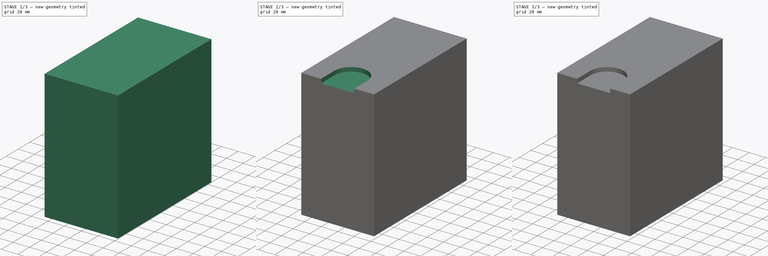
[diagram: build sequence overview — one tinted view per stage of 3, left to right]
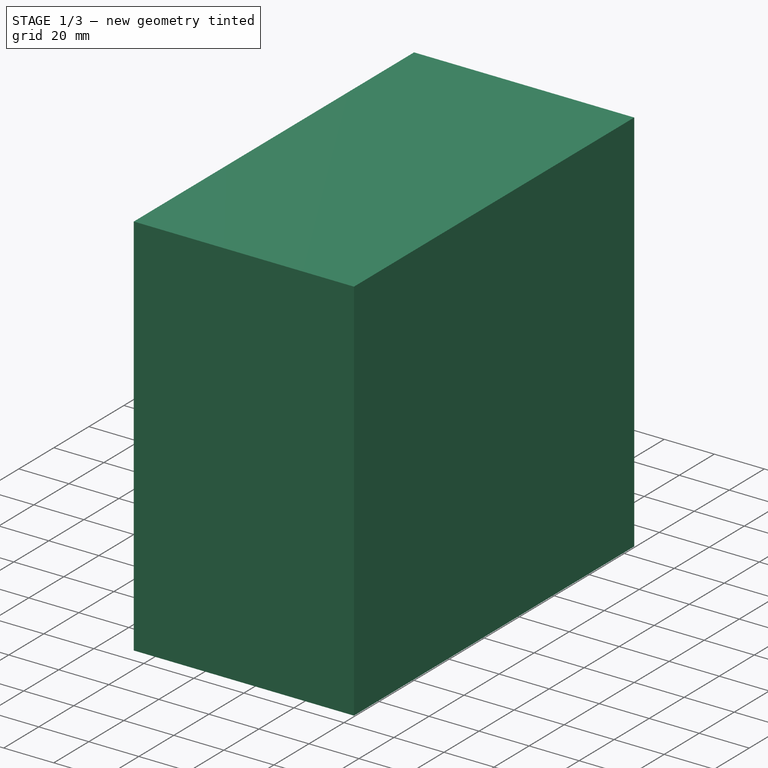
[diagram: stage 1 of 3 — iso view after this stage's code; geometry added in this stage tinted green]
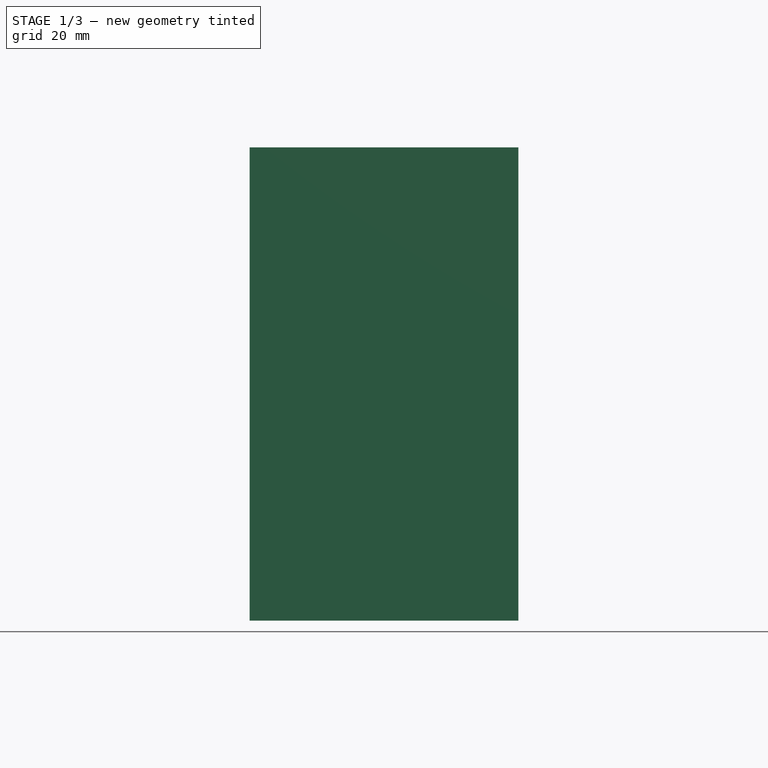
[diagram: stage 1 of 3 — front view after this stage's code; geometry added in this stage tinted green]
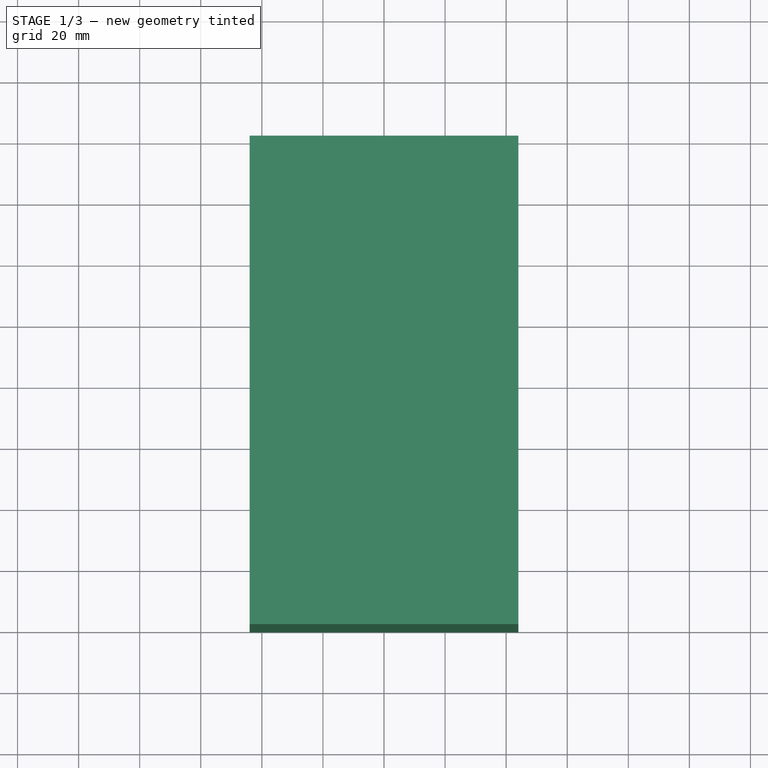
[diagram: stage 1 of 3 — top view after this stage's code; geometry added in this stage tinted green]
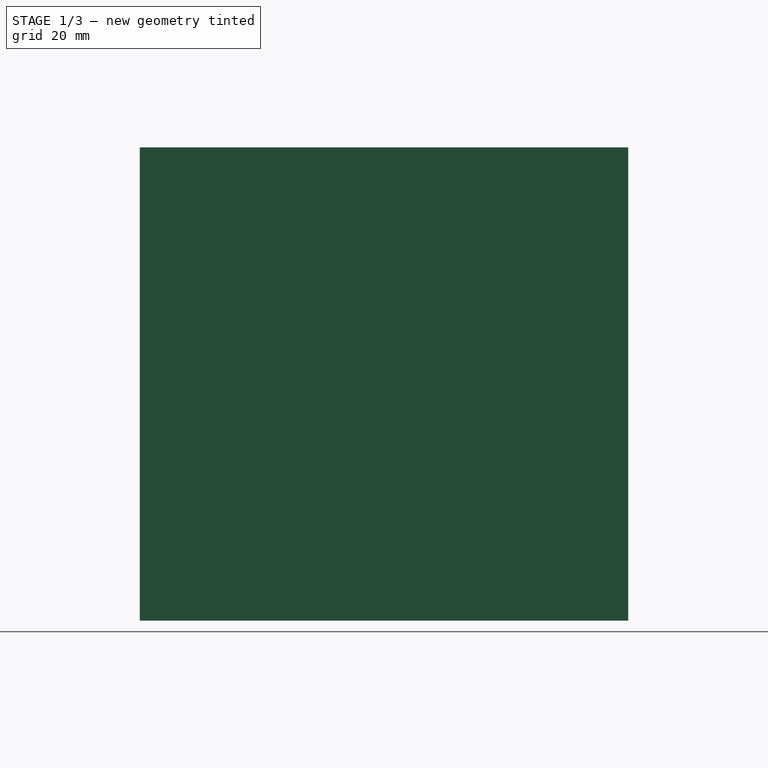
[diagram: stage 1 of 3 — right view after this stage's code; geometry added in this stage tinted green]
FCSTD DOCUMENT  (FreeCAD 1.1R20251111 (Git shallow))
Label: ATX_power_supply
License: All rights reserved
LicenseURL: https://en.wikipedia.org/wiki/All_rights_reserved
objects: Sketcher::SketchObject×5, PartDesign::Pocket×3, PartDesign::Pad×2, App::Point×1, PartDesign::Chamfer×1, PartDesign::Body×1
note: 29 computed .brp shape members not serialized (recipe doc carries the construction recipe); baked Part::Feature solids carry a one-line shape summary decoded from their .brp

FEATURE [App::Point] Origin001
  Role = Origin
FEATURE [Sketcher::SketchObject] Sketch
  ArcFitTolerance = 1e-06
  AttachmentSupport = -> [Origin]
  ExternalTypes = [0]
  FullyConstrained = true
  MakeInternals = false
  MapMode = 5
  sketch-geometry (5):
    g0: LineSegment StartX=-44 StartY=-80 StartZ=0 EndX=44 EndY=-80 EndZ=0
    g1: LineSegment StartX=44 StartY=-80 StartZ=0 EndX=44 EndY=80 EndZ=0
    g2: LineSegment StartX=44 StartY=80 StartZ=0 EndX=-44 EndY=80 EndZ=0
    g3: LineSegment StartX=-44 StartY=80 StartZ=0 EndX=-44 EndY=-80 EndZ=0
    g4: GeomPoint [constr] X=0 Y=0 Z=0
  constraints (12):
    c: Coincident(g0,g1)
    c: Coincident(g1,g2)
    c: Coincident(g2,g3)
    c: Coincident(g3,g0)
    c: Horizontal(g0)
    c: Horizontal(g2)
    c: Vertical(g1)
    c: Vertical(g3)
    c: Symmetric(g2,g0,g4)
    c: Distance(g1,g3) = 88
    c: Distance(g0,g2) = 160
    c: Coincident(g4,g-1)
FEATURE [PartDesign::Pad] Pad
  Direction = (0,0,1)
  Length = 155
  Length2 = 10
  Profile = -> Sketch
  ReferenceAxis = -> Sketch [N_Axis]
  Refine = true
  SideType = 0
  Suppressed = false
  Type = 0
  Type2 = 0
FEATURE [Sketcher::SketchObject] Sketch001
  ArcFitTolerance = 1e-06
  AttachmentSupport = -> [Pad]
  ExternalGeometry = -> [Pad]
  ExternalTypes = [0,0]
  FullyConstrained = true
  MakeInternals = false
  MapMode = 5
  Placement = pos=(-44,0,0) rot=(0.57735,-0.57735,-0.57735;2.0944rad)
  sketch-geometry (4):
    g0: Circle CenterX=0 CenterY=77.5 CenterZ=0 NormalX=0 NormalY=0 NormalZ=1 AngleXU=0 Radius=66
    g1: GeomPoint [constr] X=0 Y=155 Z=0
    g2: LineSegment [constr] StartX=0 StartY=155 StartZ=0 EndX=0 EndY=0 EndZ=0
    g3: GeomPoint [constr] X=0 Y=77.5 Z=0
  constraints (7):
    c: PointOnObject(g0,g-2)
    c: Diameter(g0) = 132
    c: PointOnObject(g1,g-3)
    c: Coincident(g2,g1)
    c: Coincident(g2,g-1)
    c: Symmetric(g2,g2,g3)
    c: Coincident(g0,g3)
FEATURE [PartDesign::Pocket] Pocket
  BaseFeature = -> Pad
  Direction = (1,0,0)
  Length = 5
  Length2 = 5
  Profile = -> Sketch001
  ReferenceAxis = -> Sketch001 [N_Axis]
  Refine = true
  SideType = 0
  Suppressed = false
  Type = 0
  Type2 = 0
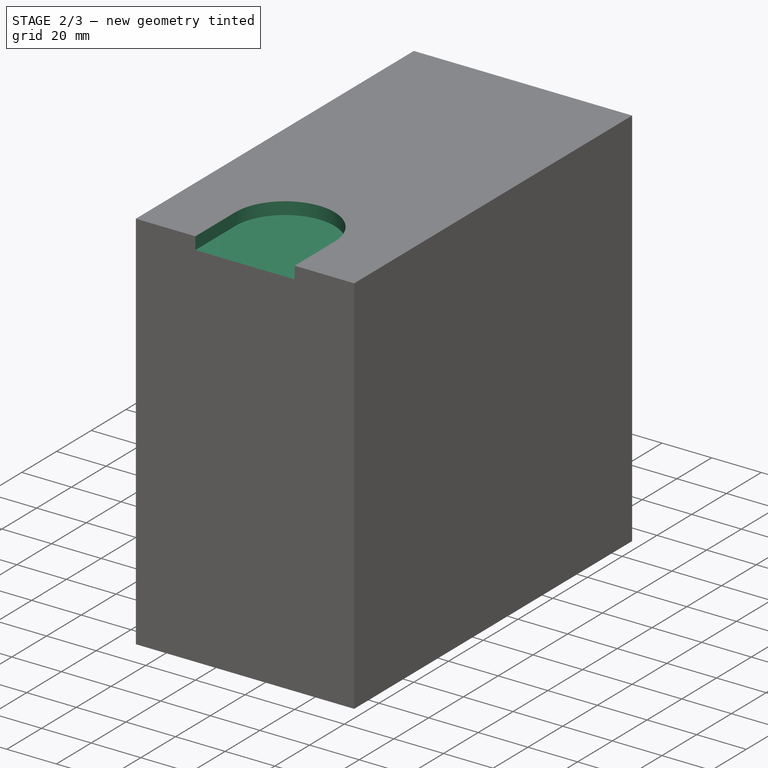
[diagram: stage 2 of 3 — iso view after this stage's code; geometry added in this stage tinted green]
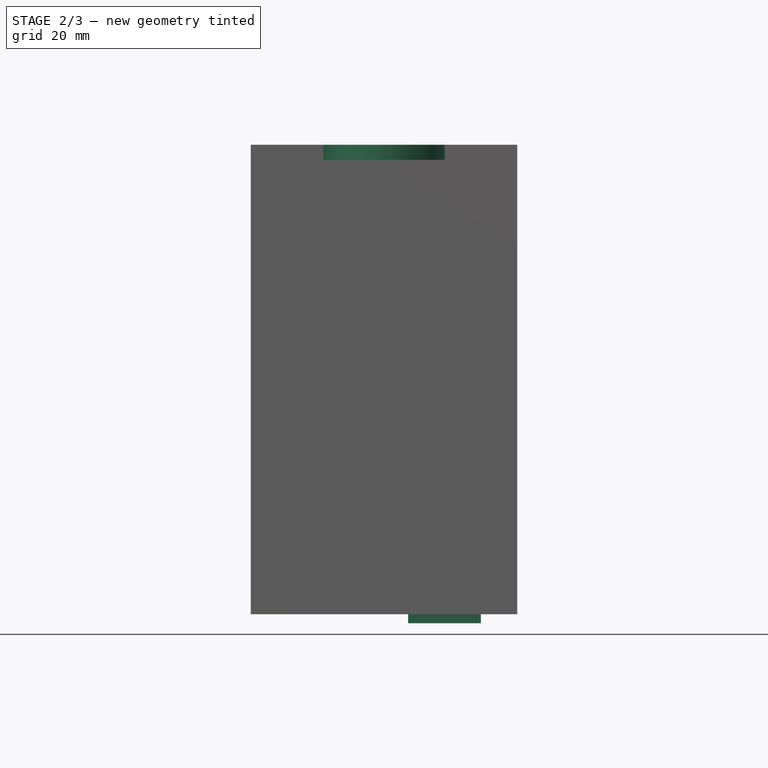
[diagram: stage 2 of 3 — front view after this stage's code; geometry added in this stage tinted green]
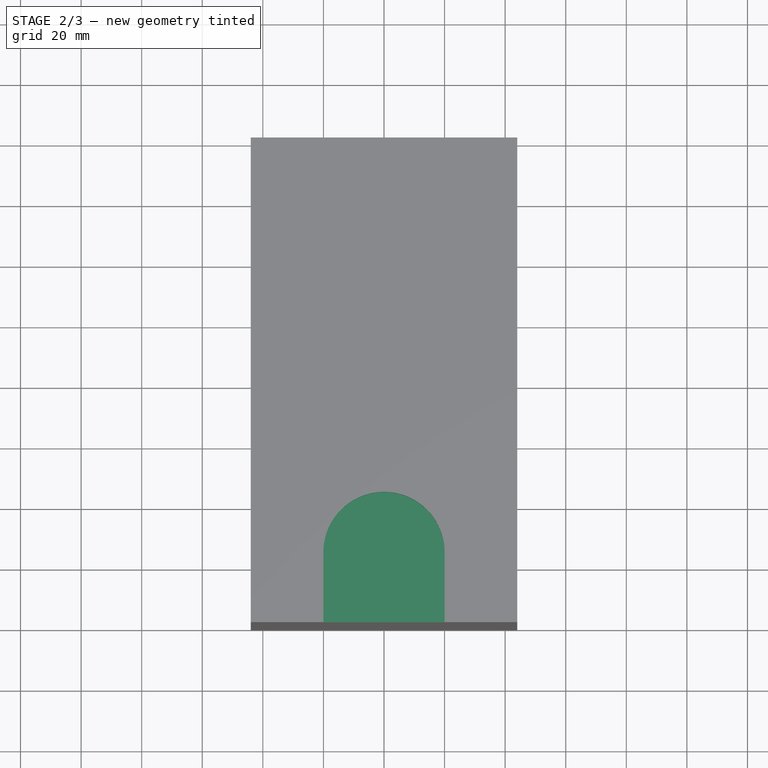
[diagram: stage 2 of 3 — top view after this stage's code; geometry added in this stage tinted green]
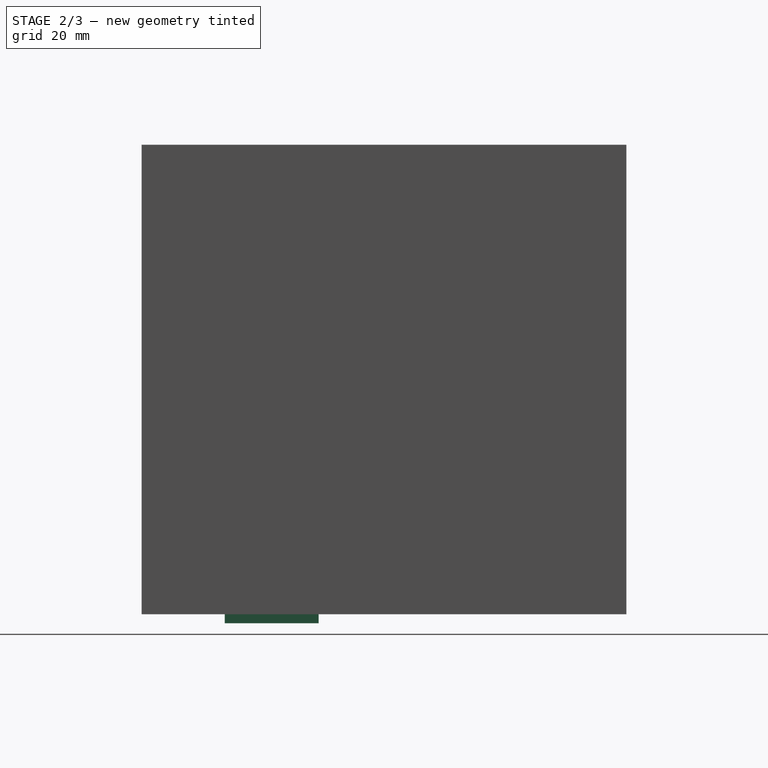
[diagram: stage 2 of 3 — right view after this stage's code; geometry added in this stage tinted green]
FEATURE [Sketcher::SketchObject] Sketch002
  ArcFitTolerance = 1e-06
  AttachmentSupport = -> [Pocket]
  ExternalGeometry = -> [Pocket]
  ExternalTypes = [0]
  FullyConstrained = false
  MakeInternals = false
  MapMode = 5
  Placement = pos=(0,0,155) rot=(0,0,1;0rad)
  sketch-geometry (4):
    g0: ArcOfCircle CenterX=0 CenterY=-56.9953 CenterZ=0 NormalX=0 NormalY=0 NormalZ=1 AngleXU=0 Radius=20 StartAngle=0 EndAngle=3.14159
    g1: LineSegment StartX=20 StartY=-56.9953 StartZ=0 EndX=20 EndY=-80 EndZ=0
    g2: LineSegment StartX=-20 StartY=-56.9953 StartZ=0 EndX=-20 EndY=-80 EndZ=0
    g3: LineSegment StartX=-20 StartY=-80 StartZ=0 EndX=20 EndY=-80 EndZ=0
  constraints (10):
    c: Radius(g0) = 20
    c: Angle(g0) = 3.14159
    c: PointOnObject(g0,g-2)
    c: PointOnObject(g1,g-3)
    c: Vertical(g1)
    c: PointOnObject(g2,g-3)
    c: Tangent(g2,g0) = -1.5708
    c: Tangent(g1,g0) = 1.5708
    c: Coincident(g3,g2)
    c: Coincident(g3,g1)
FEATURE [PartDesign::Pocket] Pocket001
  BaseFeature = -> Pocket
  Direction = (0,0,-1)
  Length = 5
  Length2 = 5
  Profile = -> Sketch002
  ReferenceAxis = -> Sketch002 [N_Axis]
  Refine = true
  SideType = 0
  Suppressed = false
  Type = 0
  Type2 = 0
FEATURE [Sketcher::SketchObject] Sketch003
  ArcFitTolerance = 1e-06
  AttachmentSupport = -> [Pocket001]
  ExternalTypes = [0]
  FullyConstrained = false
  MakeInternals = false
  MapMode = 5
  Placement = pos=(0,0,0) rot=(1,0,0;3.14159rad)
  sketch-geometry (5):
    g0: LineSegment StartX=7.97808 StartY=21.5819 StartZ=0 EndX=31.9781 EndY=21.5819 EndZ=0
    g1: LineSegment StartX=31.9781 StartY=21.5819 StartZ=0 EndX=31.9781 EndY=52.5819 EndZ=0
    g2: LineSegment StartX=31.9781 StartY=52.5819 StartZ=0 EndX=7.97808 EndY=52.5819 EndZ=0
    g3: LineSegment StartX=7.97808 StartY=52.5819 StartZ=0 EndX=7.97808 EndY=21.5819 EndZ=0
    g4: GeomPoint [constr] X=19.9781 Y=37.0819 Z=0
  constraints (11):
    c: Coincident(g0,g1)
    c: Coincident(g1,g2)
    c: Coincident(g2,g3)
    c: Coincident(g3,g0)
    c: Horizontal(g0)
    c: Horizontal(g2)
    c: Vertical(g1)
    c: Vertical(g3)
    c: Symmetric(g2,g0,g4)
    c: Distance(g1,g3) = 24
    c: Distance(g0,g2) = 31
FEATURE [PartDesign::Pad] Pad001
  BaseFeature = -> Pocket001
  Direction = (0,0,-1)
  Length = 3
  Length2 = 10
  Profile = -> Sketch003
  ReferenceAxis = -> Sketch003 [N_Axis]
  Refine = true
  SideType = 0
  Suppressed = false
  Type = 0
  Type2 = 0
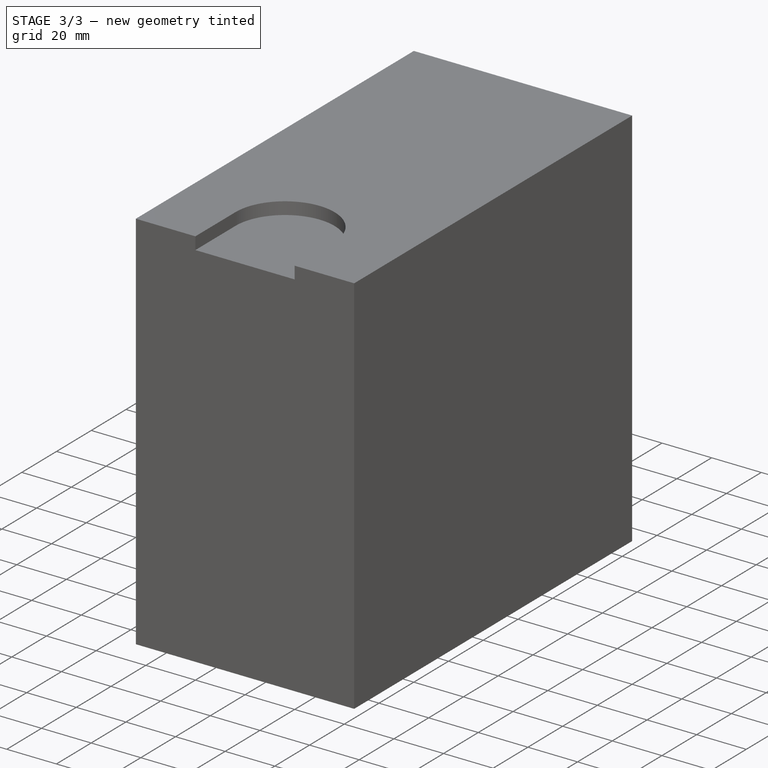
[diagram: stage 3 of 3 — iso view after this stage's code; geometry added in this stage tinted green]
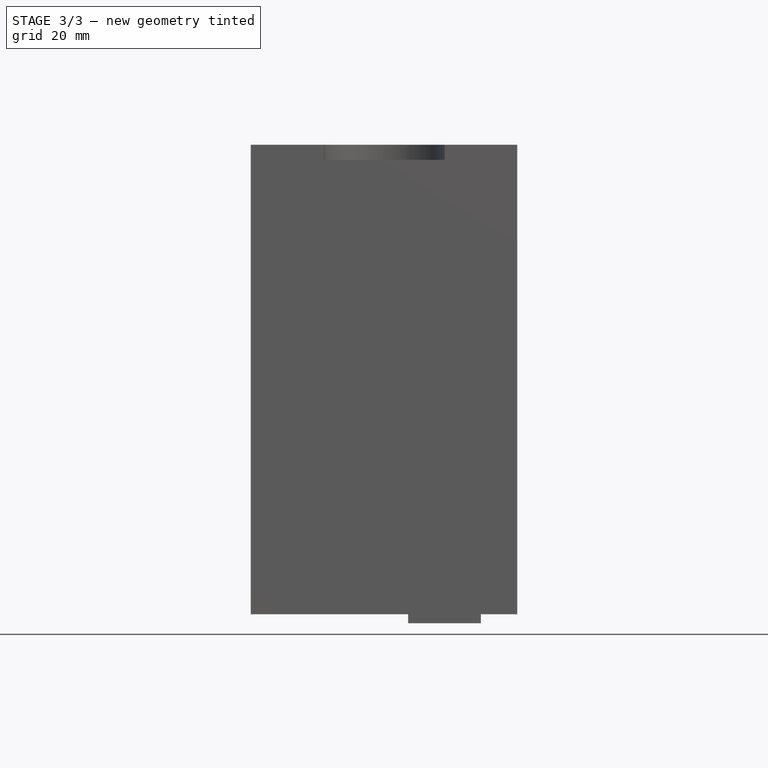
[diagram: stage 3 of 3 — front view after this stage's code; geometry added in this stage tinted green]
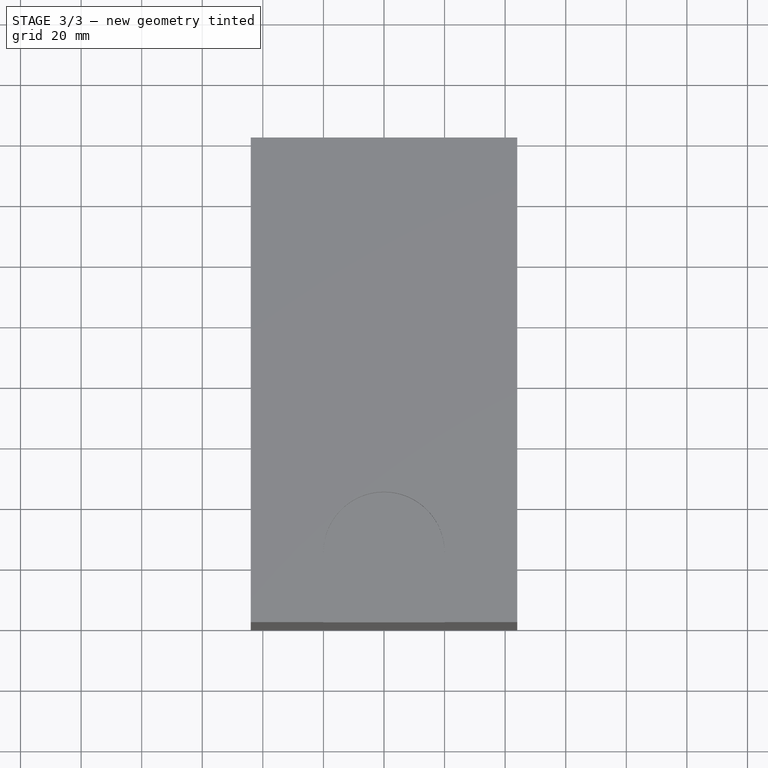
[diagram: stage 3 of 3 — top view after this stage's code; geometry added in this stage tinted green]
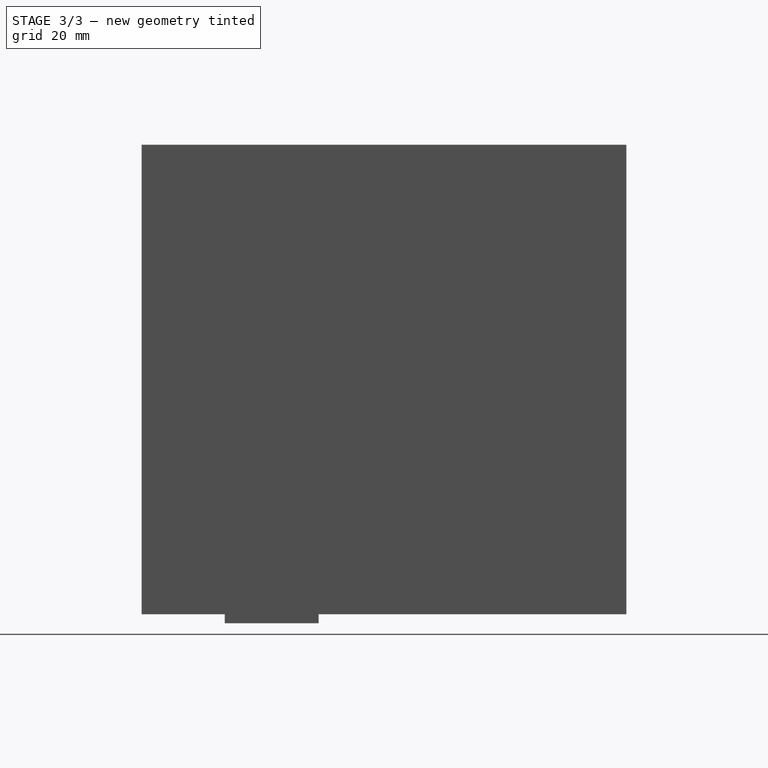
[diagram: stage 3 of 3 — right view after this stage's code; geometry added in this stage tinted green]
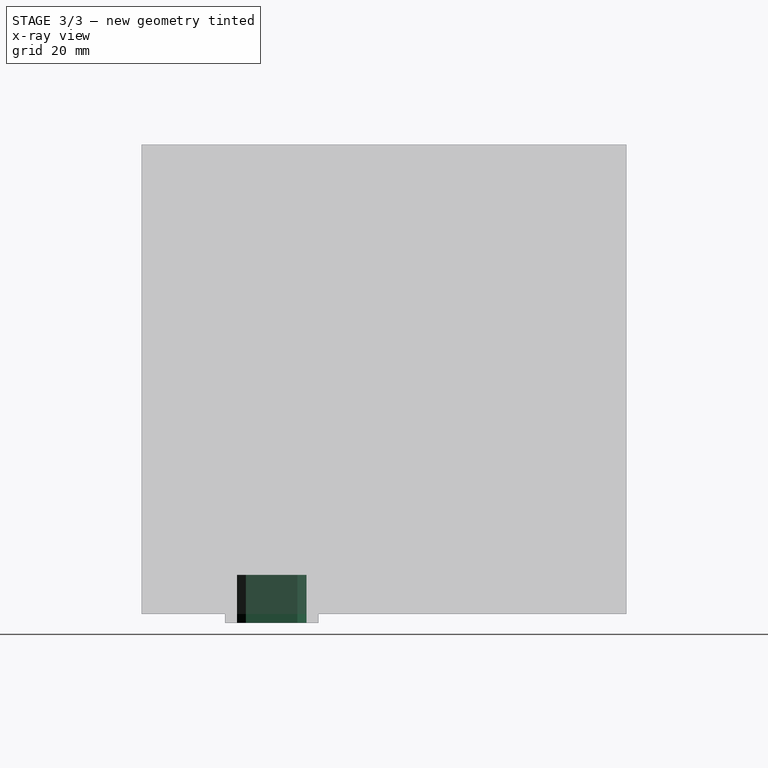
[diagram: stage 3 of 3 — x-ray composite at the right view; earlier geometry ghosted, this stage's added geometry solid]
FEATURE [Sketcher::SketchObject] Sketch004
  ArcFitTolerance = 1e-06
  AttachmentSupport = -> [Pad001]
  ExternalGeometry = -> [Pad001]
  ExternalTypes = [0,0,0,0]
  FullyConstrained = true
  MakeInternals = false
  MapMode = 5
  Placement = pos=(0,0,-3) rot=(1,0,0;3.14159rad)
  sketch-geometry (7):
    g0: LineSegment [constr] StartX=7.97808 StartY=21.5819 StartZ=0 EndX=31.9781 EndY=52.5819 EndZ=0
    g1: GeomPoint [constr] X=19.9781 Y=37.0819 Z=0
    g2: LineSegment StartX=27.9781 StartY=25.5819 StartZ=0 EndX=27.9781 EndY=48.5819 EndZ=0
    g3: LineSegment StartX=27.9781 StartY=48.5819 StartZ=0 EndX=11.9781 EndY=48.5819 EndZ=0
    g4: LineSegment StartX=11.9781 StartY=48.5819 StartZ=0 EndX=11.9781 EndY=25.5819 EndZ=0
    g5: LineSegment StartX=11.9781 StartY=25.5819 StartZ=0 EndX=27.9781 EndY=25.5819 EndZ=0
    g6: GeomPoint [constr] X=19.9781 Y=37.0819 Z=0
  constraints (15):
    c: Coincident(g0,g-9)
    c: Coincident(g0,g-8)
    c: Symmetric(g0,g0,g1)
    c: Coincident(g2,g3)
    c: Coincident(g3,g4)
    c: Coincident(g4,g5)
    c: Coincident(g5,g2)
    c: Vertical(g2)
    c: Vertical(g4)
    c: Horizontal(g3)
    c: Horizontal(g5)
    c: Symmetric(g4,g2,g6)
    c: Coincident(g6,g1)
    c: Distance(g-8,g3) = 4
    c: Distance(g-7,g2) = 4
FEATURE [PartDesign::Pocket] Pocket002
  BaseFeature = -> Pad001
  Direction = (0,0,1)
  Length = 16
  Length2 = 5
  Profile = -> Sketch004
  ReferenceAxis = -> Sketch004 [N_Axis]
  Refine = true
  SideType = 0
  Suppressed = false
  Type = 0
  Type2 = 0
FEATURE [PartDesign::Chamfer] Chamfer
  Angle = 45
  Base = -> Pocket002 [Edge44,Edge47]
  BaseFeature = -> Pocket002
  ChamferType = 0
  FlipDirection = false
  Refine = true
  Size = 3
  Size2 = 1
  SupportTransform = false
  Suppressed = false
  UseAllEdges = false
FEATURE [PartDesign::Body] Body
  AllowCompound = true
  Group = -> [Sketch,Pad,Sketch001,Pocket,Sketch002,Pocket001,Sketch003,Pad001,Sketch004,Pocket002,Chamfer]
  Origin = -> Origin
  Tip = -> Chamfer
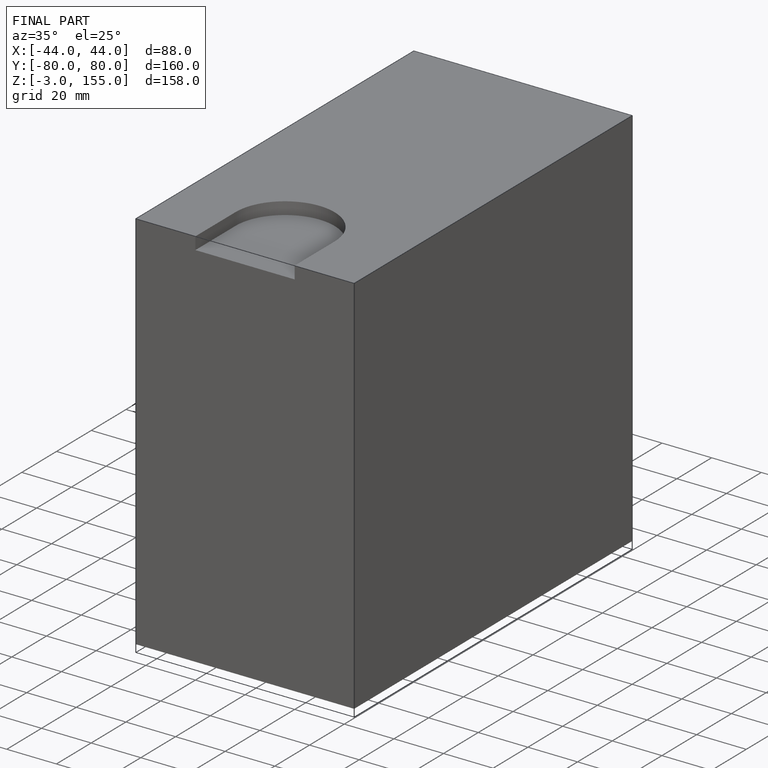
[diagram: finished part — iso view with bounding-box wireframe]
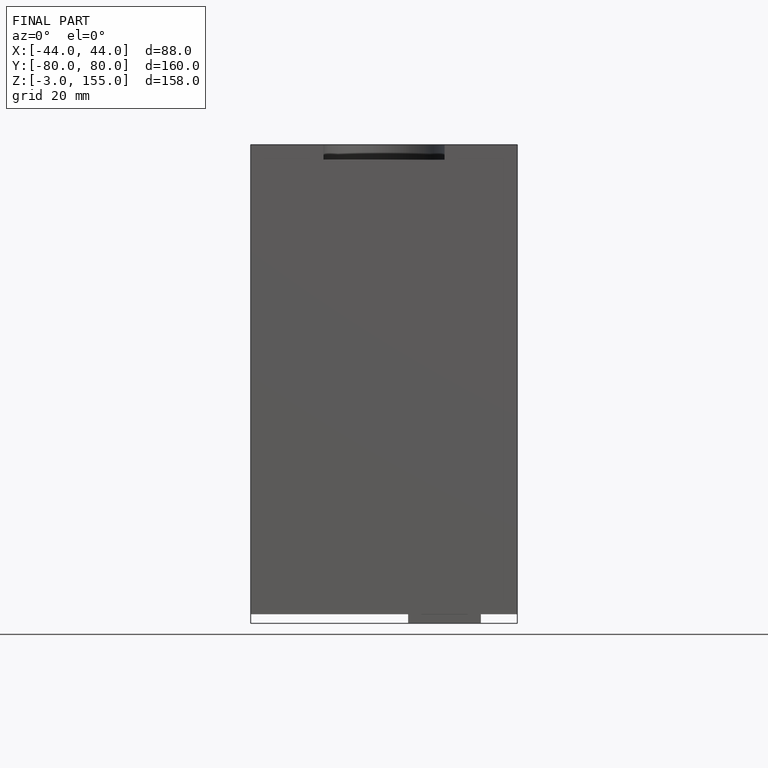
[diagram: finished part — front view with bounding-box wireframe]
